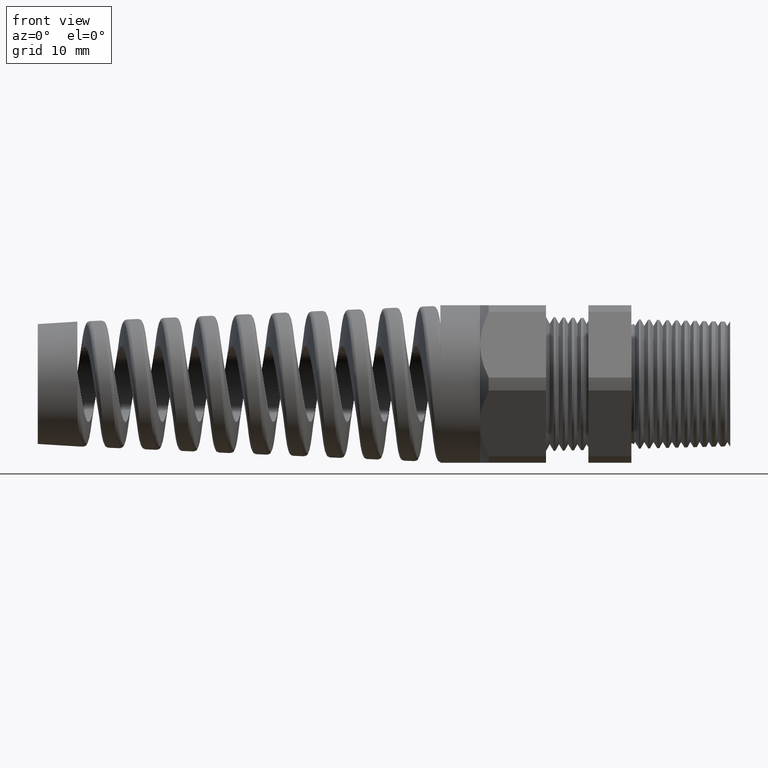
[diagram: clean part render]
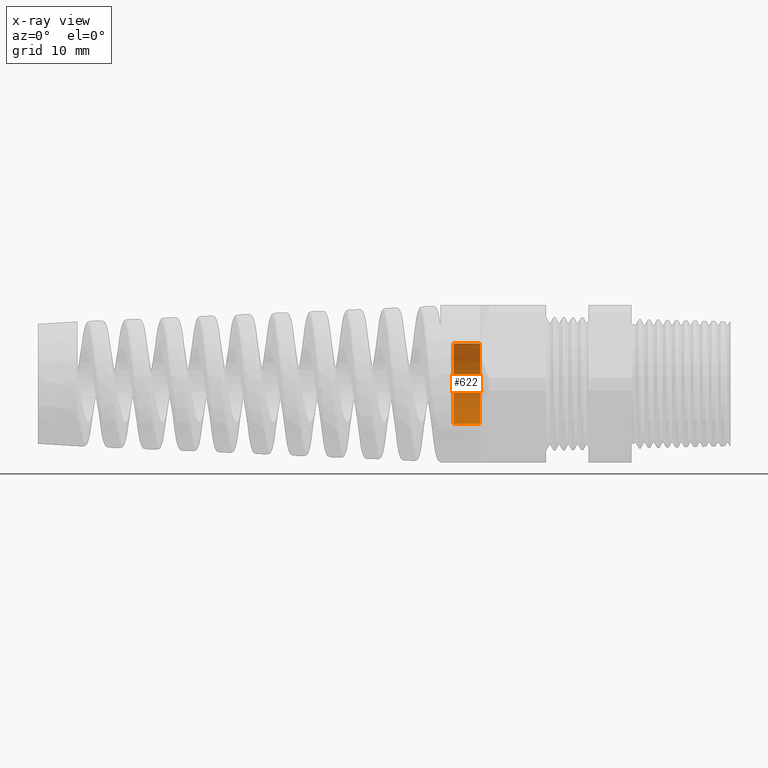
[diagram: x-ray — body ghosted, one internal face saturated and labeled with its STEP entity id]
A machine part, front view, then the same camera in x-ray: the body is ghosted and one INTERNAL B-rep face — a face not visible from any outside direction — is saturated and labeled: STEP entity #622.
In plain terms, the highlighted cylindrical surface (partial cylindrical patch) has radius 6.1183 mm, axis along (1, 0, 0).
Its self-contained STEP definition (entity closure, byte-faithful):
#595 = EDGE_CURVE ( 'NONE', #4976, #4973, #2214, .T. ) ;
#622 = ADVANCED_FACE ( 'NONE', ( #2163 ), #2161, .F. ) ;
#623 = EDGE_LOOP ( 'NONE', ( #624, #625, #1176, #916 ) ) ;
#624 = ORIENTED_EDGE ( 'NONE', *, *, #4972, .F. ) ;
#625 = ORIENTED_EDGE ( 'NONE', *, *, #646, .T. ) ;
#646 = EDGE_CURVE ( 'NONE', #4985, #4979, #2385, .T. ) ;
#916 = ORIENTED_EDGE ( 'NONE', *, *, #595, .T. ) ;
#1176 = ORIENTED_EDGE ( 'NONE', *, *, #4978, .T. ) ;
#2157 = DIRECTION ( 'NONE',  ( 0.0000000000000000000, 0.0000000000000000000, -1.000000000000000000 ) ) ;
#2158 = DIRECTION ( 'NONE',  ( 1.000000000000000000, 0.0000000000000000000, 0.0000000000000000000 ) ) ;
#2159 = CARTESIAN_POINT ( 'NONE',  ( -1.448820353894546600, 0.0000000000000000000, 0.0000000000000000000 ) ) ;
#2160 = AXIS2_PLACEMENT_3D ( 'NONE', #2159, #2158, #2157 ) ;
#2161 = CYLINDRICAL_SURFACE ( 'NONE', #2160, 0.2408786250717754600 ) ;
#2163 = FACE_OUTER_BOUND ( 'NONE', #623, .T. ) ;
#2210 = DIRECTION ( 'NONE',  ( 0.0000000000000000000, 0.0000000000000000000, 1.000000000000000000 ) ) ;
#2211 = DIRECTION ( 'NONE',  ( 1.000000000000000000, 0.0000000000000000000, 0.0000000000000000000 ) ) ;
#2212 = CARTESIAN_POINT ( 'NONE',  ( -1.212519685039369800, 0.0000000000000000000, 0.0000000000000000000 ) ) ;
#2213 = AXIS2_PLACEMENT_3D ( 'NONE', #2212, #2211, #2210 ) ;
#2214 = CIRCLE ( 'NONE', #2213, 0.2408786250717754600 ) ;
#2377 = DIRECTION ( 'NONE',  ( 0.0000000000000000000, 0.0000000000000000000, -1.000000000000000000 ) ) ;
#2383 = DIRECTION ( 'NONE',  ( -1.000000000000000000, 0.0000000000000000000, 0.0000000000000000000 ) ) ;
#2384 = AXIS2_PLACEMENT_3D ( 'NONE', #2581, #2383, #2377 ) ;
#2385 = CIRCLE ( 'NONE', #2384, 0.2408786250717754600 ) ;
#2581 = CARTESIAN_POINT ( 'NONE',  ( -1.369999999999999900, 0.0000000000000000000, 0.0000000000000000000 ) ) ;
#4972 = EDGE_CURVE ( 'NONE', #4985, #4973, #15918, .T. ) ;
#4973 = VERTEX_POINT ( 'NONE', #15914 ) ;
#4976 = VERTEX_POINT ( 'NONE', #15908 ) ;
#4978 = EDGE_CURVE ( 'NONE', #4979, #4976, #15907, .T. ) ;
#4979 = VERTEX_POINT ( 'NONE', #15903 ) ;
#4985 = VERTEX_POINT ( 'NONE', #15979 ) ;
#15903 = CARTESIAN_POINT ( 'NONE',  ( -1.369999999999999900, 0.0000000000000000000, -0.2408786250717754600 ) ) ;
#15904 = DIRECTION ( 'NONE',  ( 1.000000000000000000, 0.0000000000000000000, 0.0000000000000000000 ) ) ;
#15905 = VECTOR ( 'NONE', #15904, 39.37007874015748100 ) ;
#15906 = CARTESIAN_POINT ( 'NONE',  ( -1.448820353894546600, 0.0000000000000000000, -0.2408786250717754600 ) ) ;
#15907 = LINE ( 'NONE', #15906, #15905 ) ;
#15908 = CARTESIAN_POINT ( 'NONE',  ( -1.212519685039369800, 0.0000000000000000000, -0.2408786250717754600 ) ) ;
#15914 = CARTESIAN_POINT ( 'NONE',  ( -1.212519685039369800, 2.949912371771651700E-017, 0.2408786250717754600 ) ) ;
#15915 = DIRECTION ( 'NONE',  ( 1.000000000000000000, 0.0000000000000000000, 0.0000000000000000000 ) ) ;
#15916 = VECTOR ( 'NONE', #15915, 39.37007874015748100 ) ;
#15917 = CARTESIAN_POINT ( 'NONE',  ( -1.448820353894546600, 2.949912371771651700E-017, 0.2408786250717754600 ) ) ;
#15918 = LINE ( 'NONE', #15917, #15916 ) ;
#15979 = CARTESIAN_POINT ( 'NONE',  ( -1.369999999999999900, 2.949912371771651700E-017, 0.2408786250717754600 ) ) ;